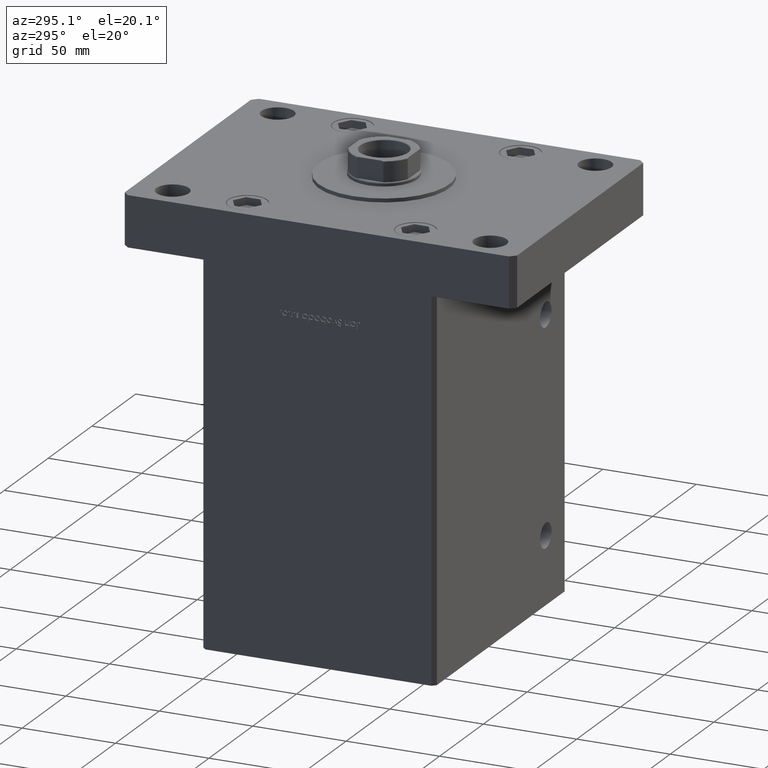
[diagram: clean part render]
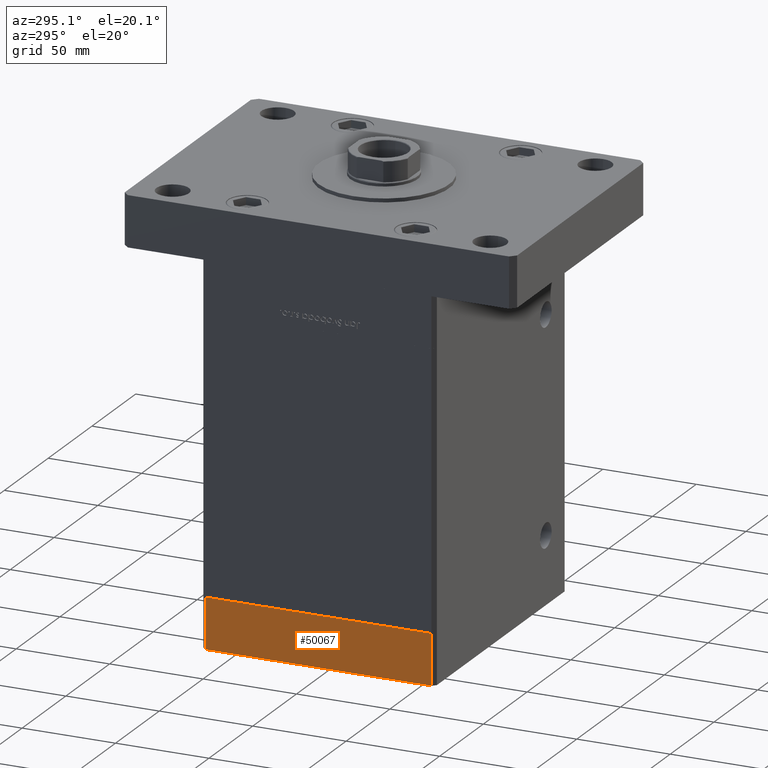
[diagram: same view with one face highlighted and labeled with its STEP entity id]
A machine part, auxiliary view. The second image highlights one B-rep face of the part: STEP entity #50067.
In plain terms, the highlighted planar face has unit normal (-1, 0, 0).
Its self-contained STEP definition (entity closure, byte-faithful):
#13 = LINE ( 'NONE', #4874, #17224 ) ;
#1136 = LINE ( 'NONE', #50674, #43234 ) ;
#4193 = CARTESIAN_POINT ( 'NONE',  ( 75.00000000000001421, -60.50000000000000711, 0.000000000000000000 ) ) ;
#4482 = LINE ( 'NONE', #45368, #15115 ) ;
#4741 = DIRECTION ( 'NONE',  ( 1.000000000000000000, 6.881547673296424104E-16, -0.000000000000000000 ) ) ;
#4874 = CARTESIAN_POINT ( 'NONE',  ( 75.00000000000001421, -60.50000000000000711, -27.00000000000000000 ) ) ;
#5025 = ORIENTED_EDGE ( 'NONE', *, *, #13743, .F. ) ;
#5270 = EDGE_CURVE ( 'NONE', #40825, #14040, #1136, .T. ) ;
#7558 = AXIS2_PLACEMENT_3D ( 'NONE', #9605, #4741, #21257 ) ;
#7732 = EDGE_CURVE ( 'NONE', #14125, #14040, #44824, .T. ) ;
#9136 = CARTESIAN_POINT ( 'NONE',  ( 75.00000000000001421, -60.50000000000000711, 0.000000000000000000 ) ) ;
#9605 = CARTESIAN_POINT ( 'NONE',  ( 75.00000000000001421, -60.50000000000000711, -27.00000000000000000 ) ) ;
#12435 = EDGE_LOOP ( 'NONE', ( #36743, #5025, #36823, #22946 ) ) ;
#13743 = EDGE_CURVE ( 'NONE', #50318, #14125, #13, .T. ) ;
#14040 = VERTEX_POINT ( 'NONE', #48970 ) ;
#14125 = VERTEX_POINT ( 'NONE', #9136 ) ;
#15115 = VECTOR ( 'NONE', #21000, 1000.000000000000000 ) ;
#17224 = VECTOR ( 'NONE', #50638, 1000.000000000000000 ) ;
#21000 = DIRECTION ( 'NONE',  ( -6.881547673296424104E-16, 1.000000000000000000, 0.000000000000000000 ) ) ;
#21257 = DIRECTION ( 'NONE',  ( -6.881547673296424104E-16, 1.000000000000000000, 0.000000000000000000 ) ) ;
#22946 = ORIENTED_EDGE ( 'NONE', *, *, #5270, .T. ) ;
#28289 = DIRECTION ( 'NONE',  ( -6.881547673296424104E-16, 1.000000000000000000, 0.000000000000000000 ) ) ;
#33650 = CARTESIAN_POINT ( 'NONE',  ( 74.99999999999992895, 60.50000000000002842, -27.00000000000000000 ) ) ;
#33704 = PLANE ( 'NONE',  #7558 ) ;
#36413 = VECTOR ( 'NONE', #28289, 1000.000000000000000 ) ;
#36743 = ORIENTED_EDGE ( 'NONE', *, *, #7732, .F. ) ;
#36823 = ORIENTED_EDGE ( 'NONE', *, *, #40632, .T. ) ;
#40632 = EDGE_CURVE ( 'NONE', #50318, #40825, #4482, .T. ) ;
#40825 = VERTEX_POINT ( 'NONE', #33650 ) ;
#42094 = FACE_OUTER_BOUND ( 'NONE', #12435, .T. ) ;
#43234 = VECTOR ( 'NONE', #50411, 1000.000000000000000 ) ;
#44824 = LINE ( 'NONE', #4193, #36413 ) ;
#45368 = CARTESIAN_POINT ( 'NONE',  ( 75.00000000000001421, -60.50000000000000711, -27.00000000000000000 ) ) ;
#48026 = CARTESIAN_POINT ( 'NONE',  ( 75.00000000000001421, -60.50000000000000711, -27.00000000000000000 ) ) ;
#48970 = CARTESIAN_POINT ( 'NONE',  ( 74.99999999999992895, 60.50000000000002842, 0.000000000000000000 ) ) ;
#50067 = ADVANCED_FACE ( 'NONE', ( #42094 ), #33704, .T. ) ;
#50318 = VERTEX_POINT ( 'NONE', #48026 ) ;
#50411 = DIRECTION ( 'NONE',  ( 0.000000000000000000, 0.000000000000000000, 1.000000000000000000 ) ) ;
#50638 = DIRECTION ( 'NONE',  ( 0.000000000000000000, 0.000000000000000000, 1.000000000000000000 ) ) ;
#50674 = CARTESIAN_POINT ( 'NONE',  ( 74.99999999999992895, 60.50000000000002842, -27.00000000000000000 ) ) ;